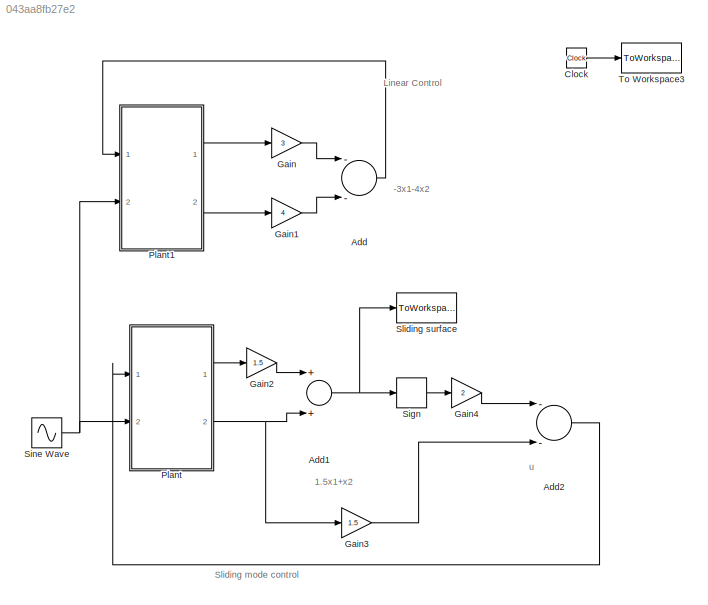
MODEL slx_043aa8fb27e2
KIND model
CONFIG AbsTol = auto
CONFIG FixedStep = 1e-4
CONFIG MaxStep = auto
CONFIG MinStep = auto
CONFIG RelTol = 1e-3
CONFIG SampleTimeConstraint = Unconstrained
CONFIG Solver = ode4
CONFIG SolverMode = Auto
CONFIG SolverName = ode4
CONFIG StartTime = 0.0
CONFIG StopTime = 10.0
BLOCK [Sum] Add
  InputSameDT = off
  Inputs = --
  OutDataTypeStr = Inherit: Inherit via internal rule
  Ports = [2, 1]
  SaturateOnIntegerOverflow = off
BLOCK [Sum] Add1
  InputSameDT = off
  OutDataTypeStr = Inherit: Inherit via internal rule
  Ports = [2, 1]
  SaturateOnIntegerOverflow = off
BLOCK [Sum] Add2
  InputSameDT = off
  Inputs = --
  OutDataTypeStr = Inherit: Inherit via internal rule
  Ports = [2, 1]
  SaturateOnIntegerOverflow = off
BLOCK [Clock] Clock
BLOCK [Gain] Gain
  Gain = 3
  OutDataTypeStr = Inherit: Inherit via internal rule
  ParamDataTypeStr = Inherit: Inherit via internal rule
  SaturateOnIntegerOverflow = off
BLOCK [Gain] Gain1
  Gain = 4
  OutDataTypeStr = Inherit: Inherit via internal rule
  ParamDataTypeStr = Inherit: Inherit via internal rule
  SaturateOnIntegerOverflow = off
BLOCK [Gain] Gain2
  Gain = 1.5
  OutDataTypeStr = Inherit: Inherit via internal rule
  ParamDataTypeStr = Inherit: Inherit via internal rule
  SaturateOnIntegerOverflow = off
BLOCK [Gain] Gain3
  Gain = 1.5
  OutDataTypeStr = Inherit: Inherit via internal rule
  ParamDataTypeStr = Inherit: Inherit via internal rule
  SaturateOnIntegerOverflow = off
BLOCK [Gain] Gain4
  Gain = 2
  OutDataTypeStr = Inherit: Inherit via internal rule
  ParamDataTypeStr = Inherit: Inherit via internal rule
  SaturateOnIntegerOverflow = off
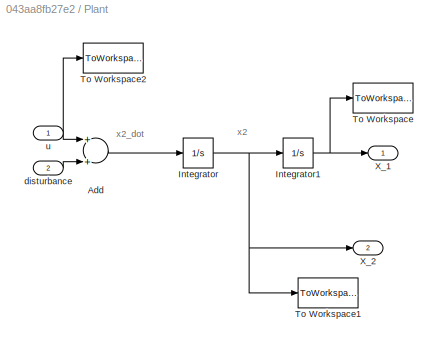
BLOCK [SubSystem] Plant
  Ports = [2, 2]
  RequestExecContextInheritance = off
BLOCK [Sum] Plant/Add
  InputSameDT = off
  OutDataTypeStr = Inherit: Inherit via internal rule
  Ports = [2, 1]
  SaturateOnIntegerOverflow = off
BLOCK [Integrator] Plant/Integrator
  InitialCondition = -2
  Ports = [1, 1]
BLOCK [Integrator] Plant/Integrator1
  InitialCondition = 1
  Ports = [1, 1]
BLOCK [ToWorkspace] Plant/To Workspace
  FixptAsFi = on
  MaxDataPoints = inf
  Ports = [1]
  SampleTime = -1
  Save2DSignal = 3-D array (concatenate along third dimension)
  VariableName = x1s
BLOCK [ToWorkspace] Plant/To Workspace1
  FixptAsFi = on
  MaxDataPoints = inf
  Ports = [1]
  SampleTime = -1
  Save2DSignal = 3-D array (concatenate along third dimension)
  VariableName = x2s
BLOCK [ToWorkspace] Plant/To Workspace2
  FixptAsFi = on
  MaxDataPoints = inf
  Ports = [1]
  SampleTime = -1
  Save2DSignal = 3-D array (concatenate along third dimension)
  VariableName = us
BLOCK [Outport] Plant/X_1
  IconDisplay = Port number
BLOCK [Outport] Plant/X_2
  IconDisplay = Port number
  Port = 2
BLOCK [Inport] Plant/disturbance
  IconDisplay = Port number
  Port = 2
BLOCK [Inport] Plant/u
  IconDisplay = Port number
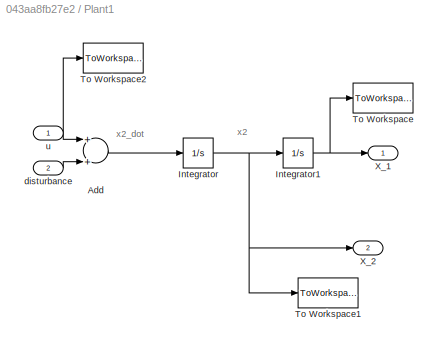
BLOCK [SubSystem] Plant1
  Ports = [2, 2]
  RequestExecContextInheritance = off
BLOCK [Sum] Plant1/Add
  InputSameDT = off
  OutDataTypeStr = Inherit: Inherit via internal rule
  Ports = [2, 1]
  SaturateOnIntegerOverflow = off
BLOCK [Integrator] Plant1/Integrator
  InitialCondition = -2
  Ports = [1, 1]
BLOCK [Integrator] Plant1/Integrator1
  InitialCondition = 1
  Ports = [1, 1]
BLOCK [ToWorkspace] Plant1/To Workspace
  FixptAsFi = on
  MaxDataPoints = inf
  Ports = [1]
  SampleTime = -1
  Save2DSignal = 3-D array (concatenate along third dimension)
  VariableName = x1
BLOCK [ToWorkspace] Plant1/To Workspace1
  FixptAsFi = on
  MaxDataPoints = inf
  Ports = [1]
  SampleTime = -1
  Save2DSignal = 3-D array (concatenate along third dimension)
  VariableName = x2
BLOCK [ToWorkspace] Plant1/To Workspace2
  FixptAsFi = on
  MaxDataPoints = inf
  Ports = [1]
  SampleTime = -1
  Save2DSignal = 3-D array (concatenate along third dimension)
  VariableName = u
BLOCK [Outport] Plant1/X_1
  IconDisplay = Port number
BLOCK [Outport] Plant1/X_2
  IconDisplay = Port number
  Port = 2
BLOCK [Inport] Plant1/disturbance
  IconDisplay = Port number
  Port = 2
BLOCK [Inport] Plant1/u
  IconDisplay = Port number
BLOCK [Signum] Sign
BLOCK [Sin] Sine Wave
  Frequency = 2
  Ports = [0, 1]
  SampleTime = 0
BLOCK [ToWorkspace] Sliding surface
  FixptAsFi = on
  MaxDataPoints = inf
  Ports = [1]
  SampleTime = -1
  Save2DSignal = 3-D array (concatenate along third dimension)
  VariableName = sliding
BLOCK [ToWorkspace] To Workspace3
  FixptAsFi = on
  MaxDataPoints = inf
  Ports = [1]
  SampleTime = -1
  Save2DSignal = 3-D array (concatenate along third dimension)
  VariableName = t
ANNOTATION (root): -3x1-4x2
ANNOTATION (root): 1.5x1+x2
ANNOTATION (root): Sliding mode control
ANNOTATION (root): Linear Control
ANNOTATION (root): u
ANNOTATION Plant: x2
ANNOTATION Plant: x2_dot
ANNOTATION Plant1: x2
ANNOTATION Plant1: x2_dot
NET Add1:1 -> Sign:1, Sliding surface:1
LINE Add2:1 -> Plant:1
LINE Add:1 -> Plant1:1
LINE Clock:1 -> To Workspace3:1
LINE Gain1:1 -> Add:2
LINE Gain2:1 -> Add1:1
LINE Gain3:1 -> Add2:2
LINE Gain4:1 -> Add2:1
LINE Gain:1 -> Add:1
LINE Plant/Add:1 -> Plant/Integrator:1
NET Plant/Integrator1:1 -> Plant/To Workspace:1, Plant/X_1:1
NET Plant/Integrator:1 -> Plant/Integrator1:1, Plant/To Workspace1:1, Plant/X_2:1
LINE Plant/disturbance:1 -> Plant/Add:2
NET Plant/u:1 -> Plant/Add:1, Plant/To Workspace2:1
LINE Plant1/Add:1 -> Plant1/Integrator:1
NET Plant1/Integrator1:1 -> Plant1/To Workspace:1, Plant1/X_1:1
NET Plant1/Integrator:1 -> Plant1/Integrator1:1, Plant1/To Workspace1:1, Plant1/X_2:1
LINE Plant1/disturbance:1 -> Plant1/Add:2
NET Plant1/u:1 -> Plant1/Add:1, Plant1/To Workspace2:1
LINE Plant1:1 -> Gain:1
LINE Plant1:2 -> Gain1:1
LINE Plant:1 -> Gain2:1
NET Plant:2 -> Add1:2, Gain3:1
LINE Sign:1 -> Gain4:1
NET Sine Wave:1 -> Plant1:2, Plant:2
note: NET lines group one-source signal fan-out (src -> all destinations, sorted); 1:1 wires keep LINE
